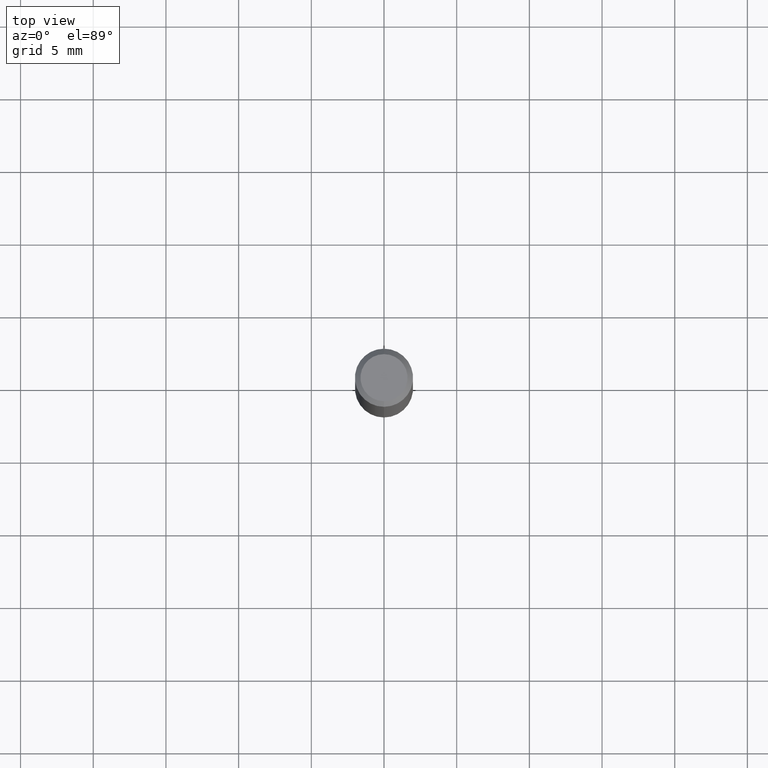
[diagram: clean part render]
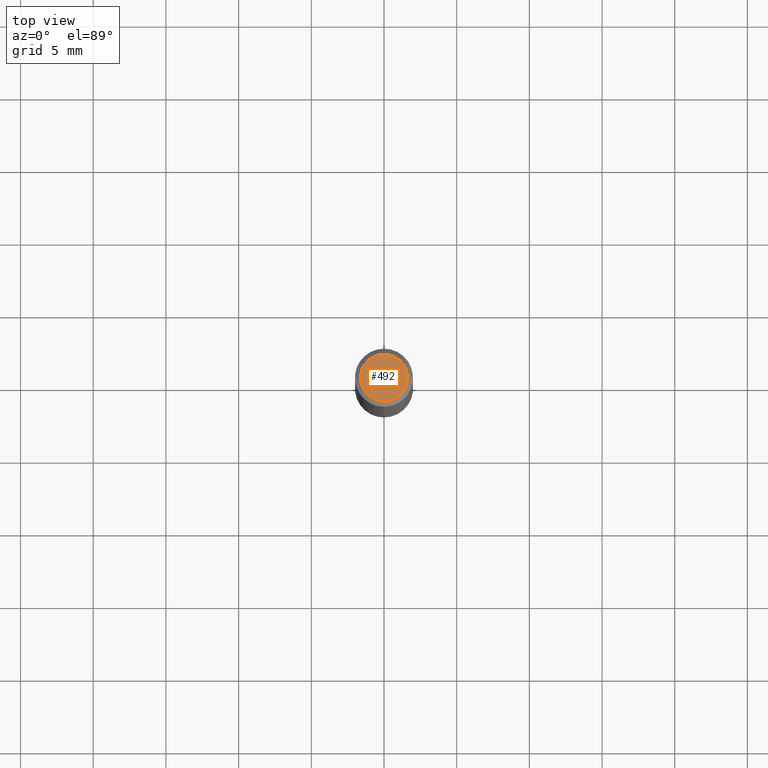
[diagram: same view with one face highlighted and labeled with its STEP entity id]
A machine part, top view. The second image highlights one B-rep face of the part: STEP entity #492.
In plain terms, the highlighted planar face has unit normal (0, -0, -1).
Its self-contained STEP definition (entity closure, byte-faithful):
#2 = DIRECTION ( 'NONE',  ( -2.444276121271986138E-29, 3.493189331522186389E-15, 1.000000000000000000 ) ) ;
#7 = PLANE ( 'NONE',  #394 ) ;
#43 = AXIS2_PLACEMENT_3D ( 'NONE', #397, #2, #113 ) ;
#86 = CARTESIAN_POINT ( 'NONE',  ( -4.888104823412213911E-16, -0.06375000000000000111, 4.578979883307718753E-16 ) ) ;
#113 = DIRECTION ( 'NONE',  ( -6.982962677686264344E-15, -1.000000000000000000, 3.493189331522186389E-15 ) ) ;
#137 = DIRECTION ( 'NONE',  ( -2.444276121271986138E-29, 3.493189331522186389E-15, 1.000000000000000000 ) ) ;
#147 = EDGE_CURVE ( 'NONE', #247, #184, #359, .T. ) ;
#175 = DIRECTION ( 'NONE',  ( 6.982962677686265922E-15, 1.000000000000000000, -3.493189331522185995E-15 ) ) ;
#184 = VERTEX_POINT ( 'NONE', #204 ) ;
#204 = CARTESIAN_POINT ( 'NONE',  ( 4.975360907851465623E-16, 0.06375000000000000111, 1.251634856169306932E-17 ) ) ;
#247 = VERTEX_POINT ( 'NONE', #86 ) ;
#248 = CARTESIAN_POINT ( 'NONE',  ( 4.451638707024993845E-16, 0.06375000000000000111, -1.050872356614231526E-16 ) ) ;
#258 = CIRCLE ( 'NONE', #43, 0.06375000000000000111 ) ;
#266 = FACE_OUTER_BOUND ( 'NONE', #323, .T. ) ;
#276 = AXIS2_PLACEMENT_3D ( 'NONE', #445, #137, #292 ) ;
#292 = DIRECTION ( 'NONE',  ( -6.982962677686264344E-15, -1.000000000000000000, 3.493189331522186389E-15 ) ) ;
#307 = ORIENTED_EDGE ( 'NONE', *, *, #147, .T. ) ;
#323 = EDGE_LOOP ( 'NONE', ( #408, #307 ) ) ;
#359 = CIRCLE ( 'NONE', #276, 0.06375000000000000111 ) ;
#367 = EDGE_CURVE ( 'NONE', #184, #247, #258, .T. ) ;
#394 = AXIS2_PLACEMENT_3D ( 'NONE', #248, #484, #175 ) ;
#397 = CARTESIAN_POINT ( 'NONE',  ( -5.749112653851238169E-45, 8.216231715139209022E-31, 2.352071684462324407E-16 ) ) ;
#408 = ORIENTED_EDGE ( 'NONE', *, *, #367, .T. ) ;
#445 = CARTESIAN_POINT ( 'NONE',  ( -5.749112653851238169E-45, 8.216231715139209022E-31, 2.352071684462324407E-16 ) ) ;
#484 = DIRECTION ( 'NONE',  ( 2.444276121271986138E-29, -3.493189331522185995E-15, -1.000000000000000000 ) ) ;
#492 = ADVANCED_FACE ( 'NONE', ( #266 ), #7, .F. ) ;